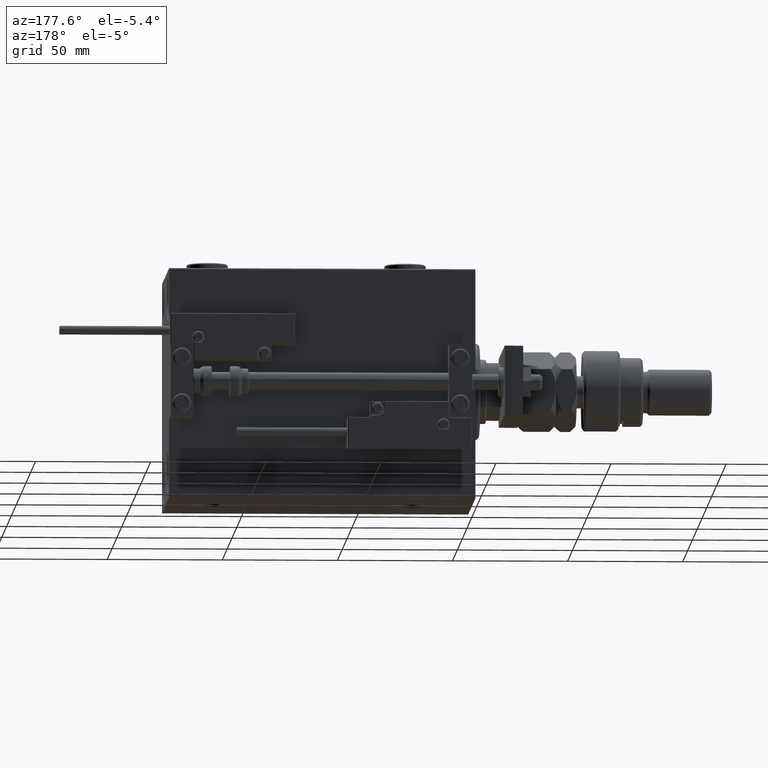
[diagram: clean part render]
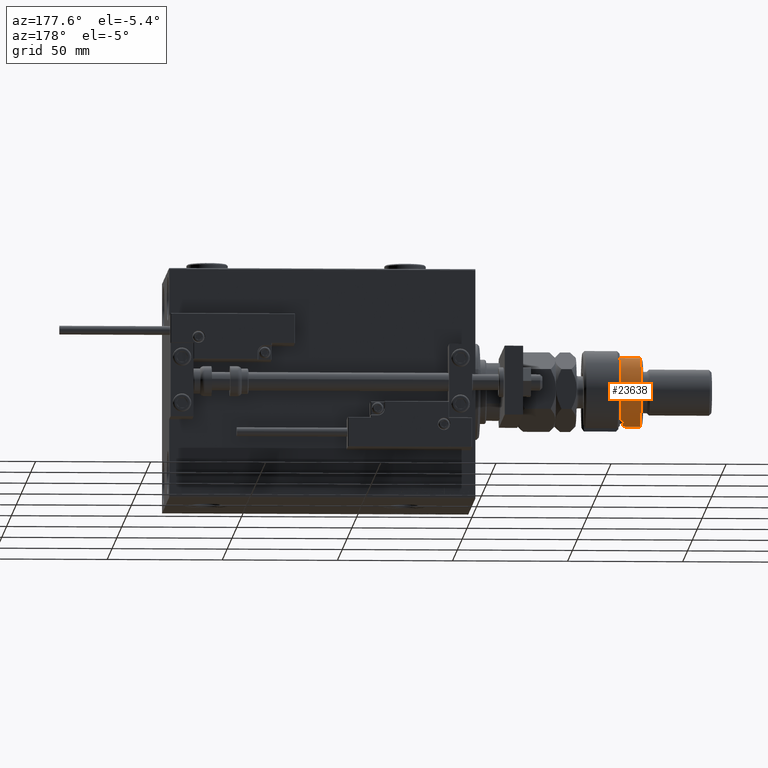
[diagram: same view with one face highlighted and labeled with its STEP entity id]
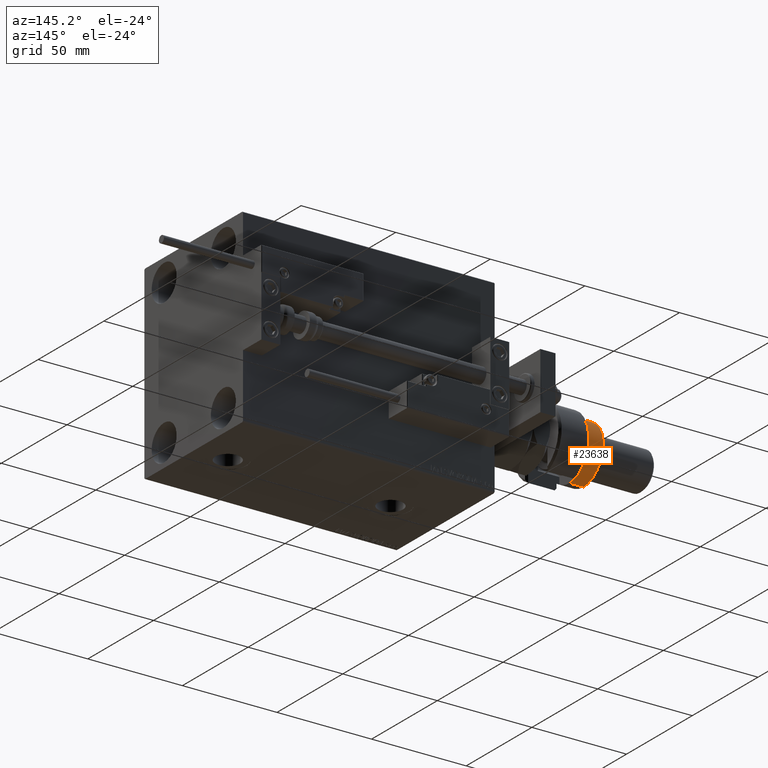
[diagram: same view with one face highlighted and labeled with its STEP entity id]
A machine part, auxiliary view. The second image highlights one B-rep face of the part: STEP entity #23638.
A second angle (auxiliary view) of the same face is appended — the face is thin or edge-on in the first view.
In plain terms, the highlighted cylindrical surface (edge-blend (fillet) strip) has radius 15 mm, axis along (1, -0, -0).
Its self-contained STEP definition (entity closure, byte-faithful):
#2966 = DIRECTION ( 'NONE',  ( 1.000000000000000000, 0.000000000000000000, 0.000000000000000000 ) ) ;
#4145 = EDGE_CURVE ( 'NONE', #44021, #30022, #52173, .T. ) ;
#4363 = ORIENTED_EDGE ( 'NONE', *, *, #50519, .F. ) ;
#4850 = CARTESIAN_POINT ( 'NONE',  ( 15.00000000000000000, 1.836970198721029589E-15, 24.99999999999997868 ) ) ;
#5655 = VECTOR ( 'NONE', #20396, 1000.000000000000000 ) ;
#5912 = CARTESIAN_POINT ( 'NONE',  ( -12.99038105676658006, 7.500000000000000000, 16.00000000000000000 ) ) ;
#7071 = VERTEX_POINT ( 'NONE', #15845 ) ;
#9541 = VECTOR ( 'NONE', #25124, 1000.000000000000000 ) ;
#10520 = ORIENTED_EDGE ( 'NONE', *, *, #23611, .T. ) ;
#10695 = DIRECTION ( 'NONE',  ( -1.000000000000000000, 0.000000000000000000, 0.000000000000000000 ) ) ;
#10850 = AXIS2_PLACEMENT_3D ( 'NONE', #31790, #40332, #53537 ) ;
#14826 = CARTESIAN_POINT ( 'NONE',  ( -15.00000000000000000, 0.000000000000000000, 24.99999999999997868 ) ) ;
#15544 = ORIENTED_EDGE ( 'NONE', *, *, #48434, .F. ) ;
#15834 = AXIS2_PLACEMENT_3D ( 'NONE', #23111, #53382, #10695 ) ;
#15845 = CARTESIAN_POINT ( 'NONE',  ( -15.00000000000000000, 0.000000000000000000, 17.50000000000000000 ) ) ;
#17974 = EDGE_CURVE ( 'NONE', #23959, #44021, #22277, .T. ) ;
#18325 = VERTEX_POINT ( 'NONE', #43148 ) ;
#18479 = EDGE_CURVE ( 'NONE', #30022, #18325, #42749, .T. ) ;
#18698 = CARTESIAN_POINT ( 'NONE',  ( 0.000000000000000000, 0.000000000000000000, 24.99999999999997868 ) ) ;
#19693 = AXIS2_PLACEMENT_3D ( 'NONE', #38924, #30099, #47181 ) ;
#20396 = DIRECTION ( 'NONE',  ( -0.000000000000000000, -0.000000000000000000, -1.000000000000000000 ) ) ;
#21000 = VECTOR ( 'NONE', #23101, 1000.000000000000000 ) ;
#21110 = AXIS2_PLACEMENT_3D ( 'NONE', #18698, #48716, #2966 ) ;
#21211 = EDGE_LOOP ( 'NONE', ( #10520, #47714, #31672, #37901, #15544, #4363 ) ) ;
#22277 = LINE ( 'NONE', #38809, #21000 ) ;
#23101 = DIRECTION ( 'NONE',  ( -0.000000000000000000, -0.000000000000000000, -1.000000000000000000 ) ) ;
#23111 = CARTESIAN_POINT ( 'NONE',  ( 0.000000000000000000, 0.000000000000000000, 26.00000000000000355 ) ) ;
#23392 = CYLINDRICAL_SURFACE ( 'NONE', #15834, 15.00000000000000000 ) ;
#23611 = EDGE_CURVE ( 'NONE', #42314, #23959, #36956, .T. ) ;
#23638 = ADVANCED_FACE ( 'NONE', ( #28045 ), #23392, .T. ) ;
#23959 = VERTEX_POINT ( 'NONE', #4850 ) ;
#25124 = DIRECTION ( 'NONE',  ( 0.000000000000000000, 0.000000000000000000, 1.000000000000000000 ) ) ;
#28045 = FACE_OUTER_BOUND ( 'NONE', #21211, .T. ) ;
#28648 = CARTESIAN_POINT ( 'NONE',  ( -15.00000000000000000, 0.000000000000000000, 26.00000000000000355 ) ) ;
#30022 = VERTEX_POINT ( 'NONE', #5912 ) ;
#30099 = DIRECTION ( 'NONE',  ( 0.000000000000000000, 0.000000000000000000, -1.000000000000000000 ) ) ;
#31672 = ORIENTED_EDGE ( 'NONE', *, *, #4145, .T. ) ;
#31790 = CARTESIAN_POINT ( 'NONE',  ( 0.000000000000000000, 0.000000000000000000, 16.00000000000000000 ) ) ;
#32039 = CARTESIAN_POINT ( 'NONE',  ( 15.00000000000000000, 1.836970198721029589E-15, 16.00000000000000000 ) ) ;
#36917 = LINE ( 'NONE', #28648, #5655 ) ;
#36956 = CIRCLE ( 'NONE', #21110, 15.00000000000000000 ) ;
#37901 = ORIENTED_EDGE ( 'NONE', *, *, #18479, .T. ) ;
#38809 = CARTESIAN_POINT ( 'NONE',  ( 15.00000000000000000, 1.836970198721029589E-15, 26.00000000000000355 ) ) ;
#38924 = CARTESIAN_POINT ( 'NONE',  ( 0.000000000000000000, 0.000000000000000000, 17.50000000000000000 ) ) ;
#40332 = DIRECTION ( 'NONE',  ( 0.000000000000000000, 0.000000000000000000, 1.000000000000000000 ) ) ;
#42314 = VERTEX_POINT ( 'NONE', #14826 ) ;
#42749 = LINE ( 'NONE', #47142, #9541 ) ;
#43148 = CARTESIAN_POINT ( 'NONE',  ( -12.99038105676658006, 7.500000000000000000, 17.50000000000000000 ) ) ;
#43431 = CIRCLE ( 'NONE', #19693, 15.00000000000000000 ) ;
#44021 = VERTEX_POINT ( 'NONE', #32039 ) ;
#47142 = CARTESIAN_POINT ( 'NONE',  ( -12.99038105676658006, 7.500000000000000000, 26.00000000000000355 ) ) ;
#47181 = DIRECTION ( 'NONE',  ( -1.000000000000000000, 0.000000000000000000, 0.000000000000000000 ) ) ;
#47714 = ORIENTED_EDGE ( 'NONE', *, *, #17974, .T. ) ;
#48434 = EDGE_CURVE ( 'NONE', #7071, #18325, #43431, .T. ) ;
#48716 = DIRECTION ( 'NONE',  ( 0.000000000000000000, 0.000000000000000000, -1.000000000000000000 ) ) ;
#50519 = EDGE_CURVE ( 'NONE', #42314, #7071, #36917, .T. ) ;
#52173 = CIRCLE ( 'NONE', #10850, 15.00000000000000000 ) ;
#53382 = DIRECTION ( 'NONE',  ( -0.000000000000000000, -0.000000000000000000, -1.000000000000000000 ) ) ;
#53537 = DIRECTION ( 'NONE',  ( 1.000000000000000000, 0.000000000000000000, 0.000000000000000000 ) ) ;